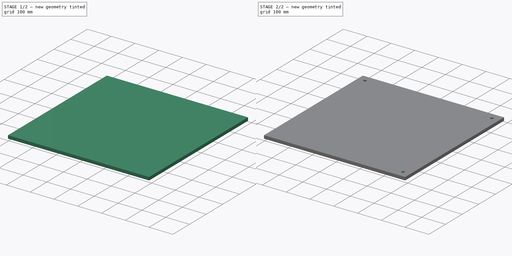
[diagram: build sequence overview — one tinted view per stage of 2, left to right]
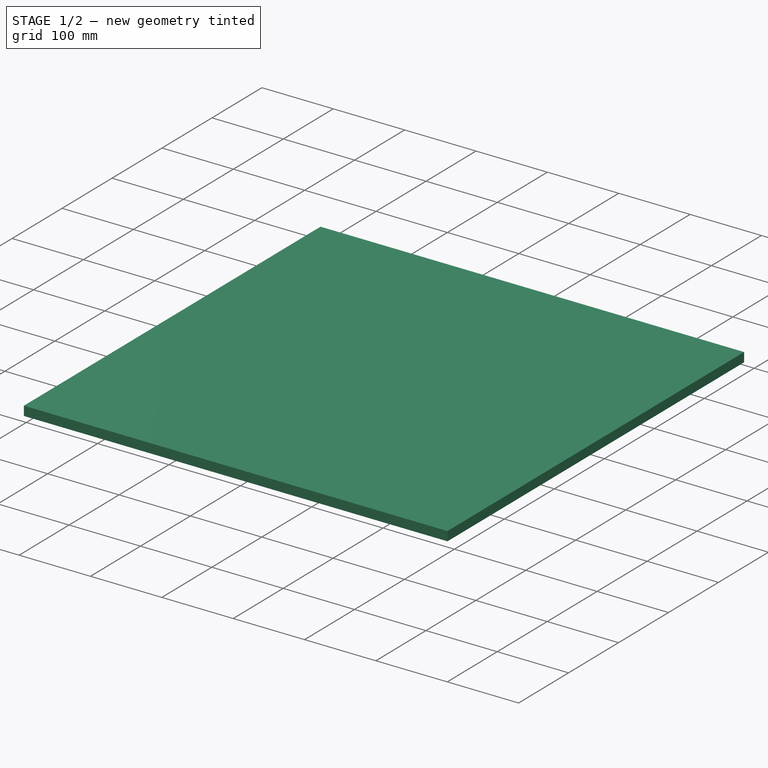
[diagram: stage 1 of 2 — iso view after this stage's code; geometry added in this stage tinted green]
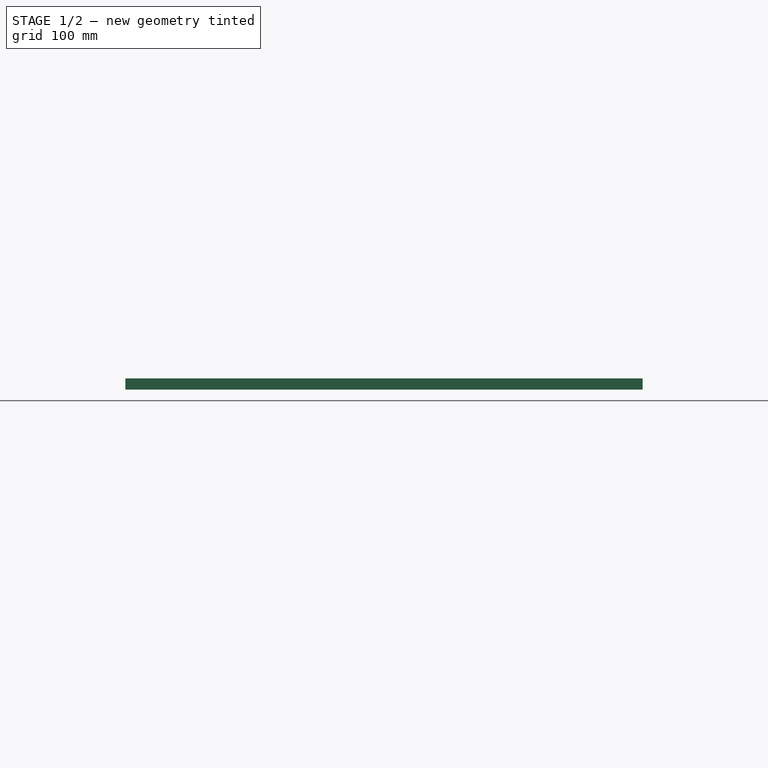
[diagram: stage 1 of 2 — front view after this stage's code; geometry added in this stage tinted green]
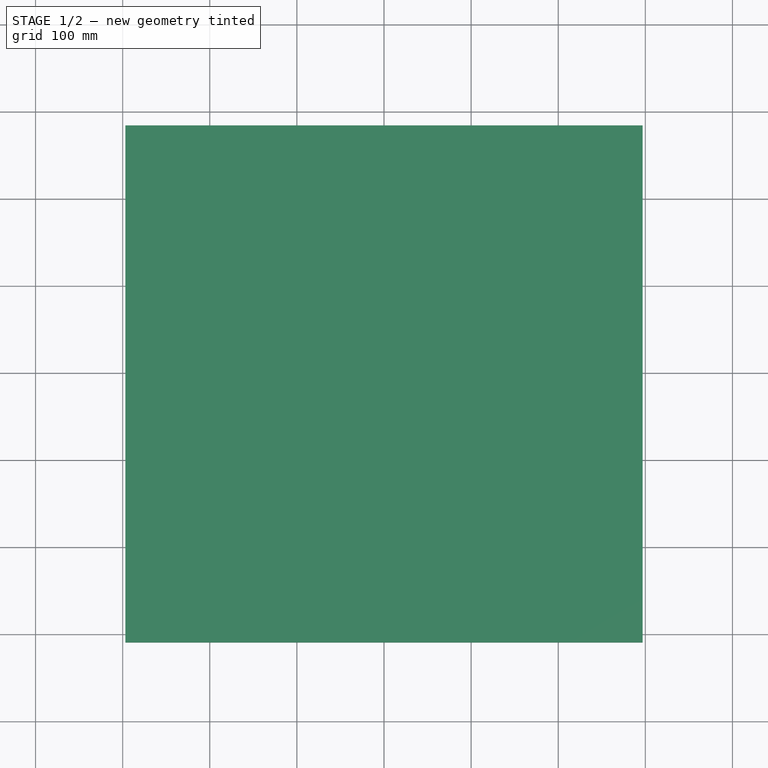
[diagram: stage 1 of 2 — top view after this stage's code; geometry added in this stage tinted green]
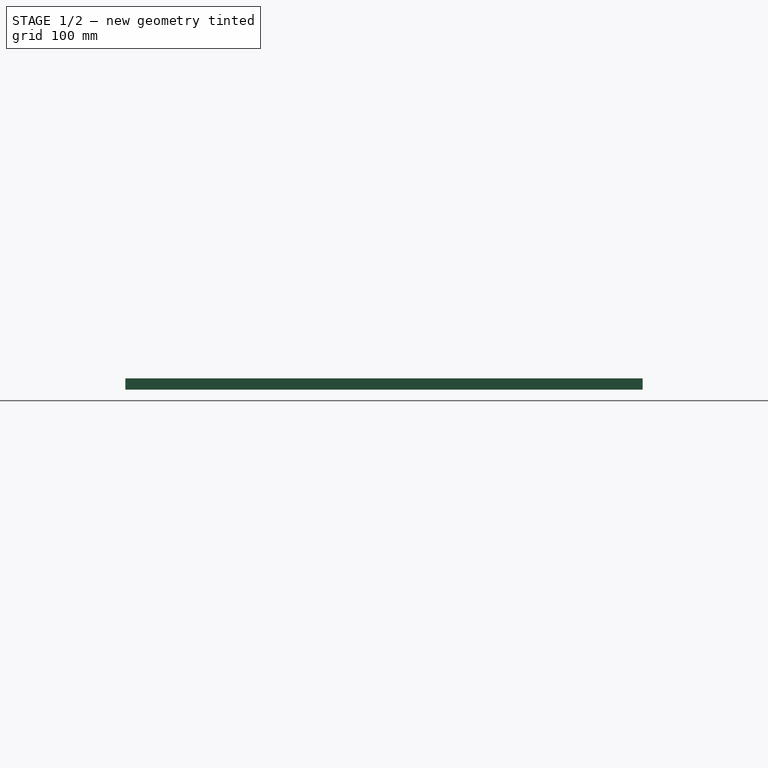
[diagram: stage 1 of 2 — right view after this stage's code; geometry added in this stage tinted green]
FCSTD DOCUMENT  (FreeCAD 0.20R29177 (Git))
Label: Stator_Mold_Base
License: All rights reserved
LicenseURL: http://en.wikipedia.org/wiki/All_rights_reserved
objects: App::Link×6, App::Part×3, Sketcher::SketchObject×2, PartDesign::Pad×1, PartDesign::Pocket×1, Spreadsheet::Sheet×1, PartDesign::Body×1
note: 7 computed .brp shape members not serialized (recipe doc carries the construction recipe); baked Part::Feature solids carry a one-line shape summary decoded from their .brp
EXTERNAL_REF file=../../../Master_of_Puppets.FCStd obj=Alternator
EXTERNAL_REF file=../../../Master_of_Puppets.FCStd obj=Fastener
EXTERNAL_REF file=../../../Master_of_Puppets.FCStd obj=Spreadsheet
EXTERNAL_REF file=../../../Fasteners/Fastener_Bolt_Locating.FCStd obj=Binder
EXTERNAL_REF file=../../../Fasteners/Fastener_Washer_StatorMold.FCStd obj=Tube

FEATURE [Sketcher::SketchObject] Sketch
  AttachmentOffset = pos=(0,-12.5,0) rot=(0,0,1;0rad)
  FullyConstrained = true
  MapMode = 5
  Placement = pos=(0,-12.5,0) rot=(0,0,1;0rad)
  Support = -> [XY_Plane001]
  expr: .AttachmentOffset.Base.y = Spreadsheet.SketchY
  expr: Constraints[15] = Spreadsheet.StatorMoldSideLength
  sketch-geometry (6):
    g0: LineSegment StartX=-296.825 StartY=296.825 StartZ=0 EndX=296.825 EndY=296.825 EndZ=0
    g1: LineSegment StartX=296.825 StartY=296.825 StartZ=0 EndX=296.825 EndY=-296.825 EndZ=0
    g2: LineSegment StartX=296.825 StartY=-296.825 StartZ=0 EndX=-296.825 EndY=-296.825 EndZ=0
    g3: LineSegment StartX=-296.825 StartY=-296.825 StartZ=0 EndX=-296.825 EndY=296.825 EndZ=0
    g4: LineSegment StartX=-296.825 StartY=296.825 StartZ=0 EndX=296.825 EndY=-296.825 EndZ=0
    g5: LineSegment StartX=296.825 StartY=296.825 StartZ=0 EndX=-296.825 EndY=-296.825 EndZ=0
  constraints (16):
    c: Coincident(g0,g1)
    c: Coincident(g1,g2)
    c: Coincident(g2,g3)
    c: Coincident(g3,g0)
    c: Horizontal(g0)
    c: Horizontal(g2)
    c: Vertical(g1)
    c: Vertical(g3)
    c: Coincident(g4,g0)
    c: Coincident(g4,g1)
    c: Coincident(g5,g0)
    c: Coincident(g5,g2)
    c: PointOnObject(g-1,g5)
    c: PointOnObject(g-1,g4)
    c: Equal(g0,g3)
    c: Distance(g0) = 593.65
FEATURE [PartDesign::Pad] Pad
  AllowMultiFace = false
  Direction = (0,0,1)
  Length = 13
  Length2 = 100
  Profile = -> Sketch
  Type = 0
  expr: Length = Spreadsheet.StatorThickness
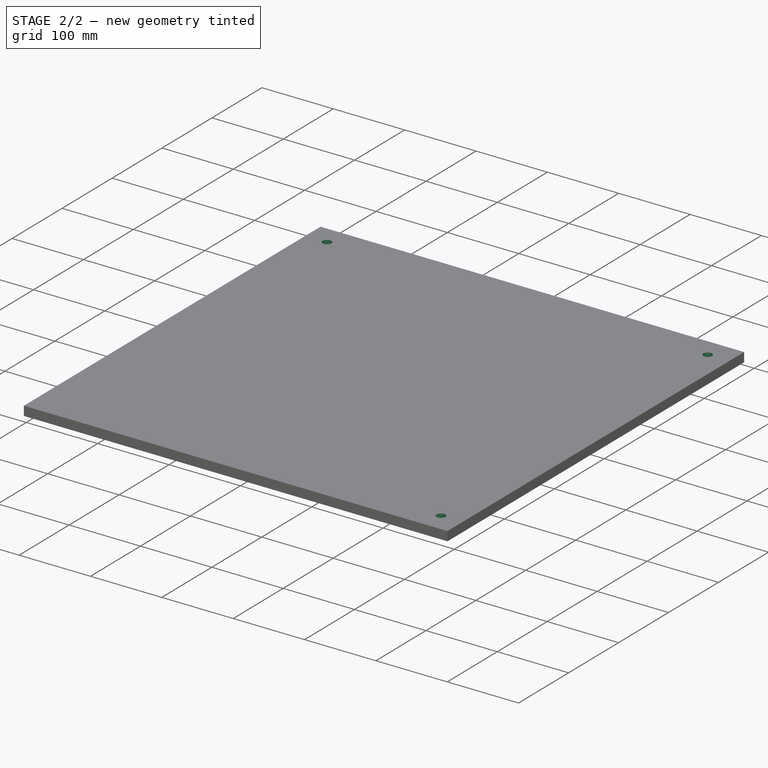
[diagram: stage 2 of 2 — iso view after this stage's code; geometry added in this stage tinted green]
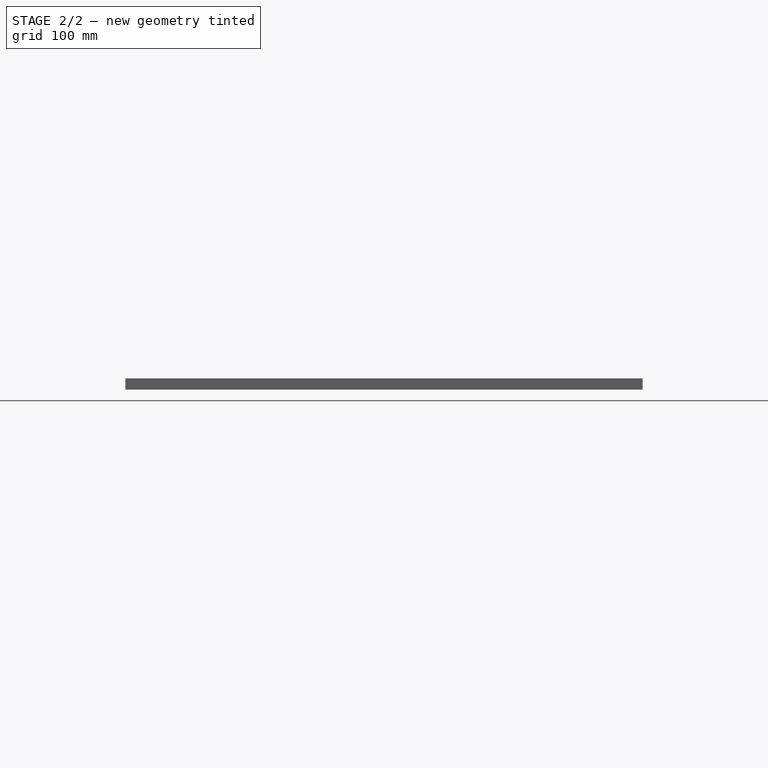
[diagram: stage 2 of 2 — front view after this stage's code; geometry added in this stage tinted green]
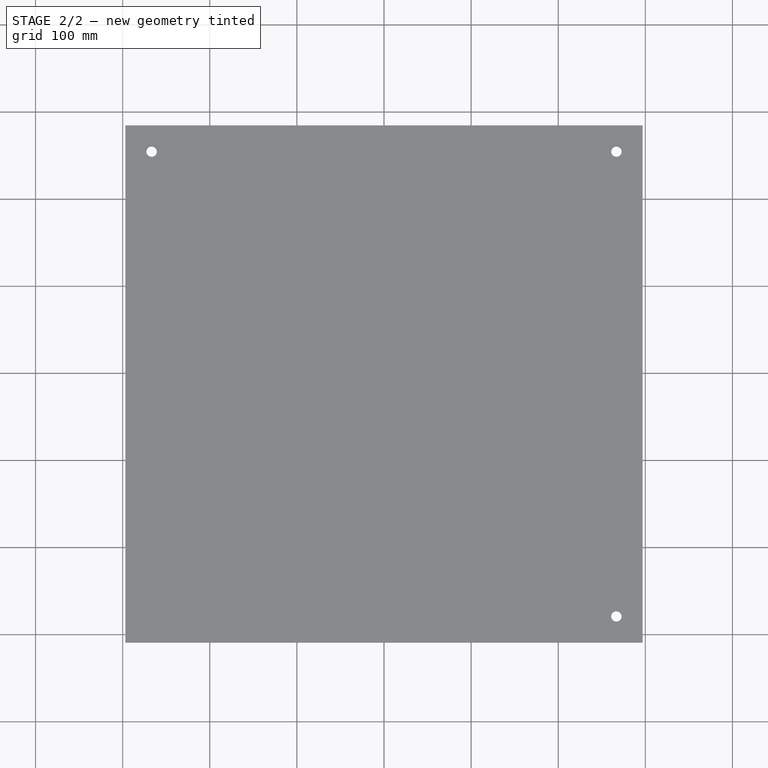
[diagram: stage 2 of 2 — top view after this stage's code; geometry added in this stage tinted green]
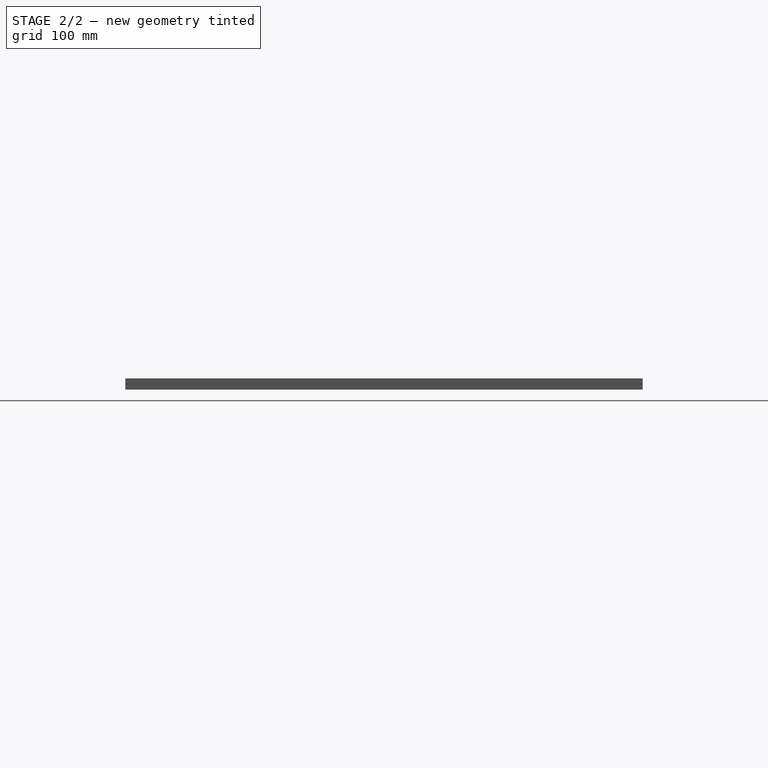
[diagram: stage 2 of 2 — right view after this stage's code; geometry added in this stage tinted green]
FEATURE [Sketcher::SketchObject] Sketch001
  AttachmentOffset = pos=(0,-12.5,0) rot=(0,0,1;0rad)
  FullyConstrained = true
  MapMode = 5
  Placement = pos=(0,-12.5,13) rot=(0,0,1;0rad)
  Support = -> [Pad]
  expr: .AttachmentOffset.Base.y = Spreadsheet.SketchY
  expr: Constraints[14] = Spreadsheet.StatorMoldBoltRadius
  expr: Constraints[5] = 45
  expr: Constraints[8] = Spreadsheet.DistanceOfLocatingHoleFromCenter
  sketch-geometry (6):
    g0: LineSegment StartX=-266.804 StartY=266.804 StartZ=0 EndX=0 EndY=0 EndZ=0
    g1: LineSegment StartX=0 StartY=0 StartZ=0 EndX=266.804 EndY=266.804 EndZ=0
    g2: LineSegment StartX=0 StartY=0 StartZ=0 EndX=266.804 EndY=-266.804 EndZ=0
    g3: Circle CenterX=-266.804 CenterY=266.804 CenterZ=0 NormalX=0 NormalY=0 NormalZ=1 AngleXU=0 Radius=6
    g4: Circle CenterX=266.804 CenterY=266.804 CenterZ=0 NormalX=0 NormalY=0 NormalZ=1 AngleXU=0 Radius=6
    g5: Circle CenterX=266.804 CenterY=-266.804 CenterZ=0 NormalX=0 NormalY=0 NormalZ=1 AngleXU=0 Radius=6
  constraints (15):
    c: Coincident(g0,g-1)
    c: Coincident(g0,g1)
    c: Coincident(g-1,g2)
    c: Parallel(g0,g2)
    c: Perpendicular(g2,g1)
    c: Angle(g-2,g0) = 0.785398
    c: Equal(g0,g1)
    c: Equal(g1,g2)
    c: Distance(g0) = 377.318
    c: Coincident(g3,g0)
    c: Coincident(g5,g2)
    c: Coincident(g4,g1)
    c: Equal(g3,g4)
    c: Equal(g4,g5)
    c: Radius(g3) = 6
FEATURE [PartDesign::Pocket] Pocket
  AllowMultiFace = false
  BaseFeature = -> Pad
  Direction = (0,0,-1)
  Length = 5
  Length2 = 100
  Profile = -> Sketch001
  Type = 1
FEATURE [Spreadsheet::Sheet] Spreadsheet
  cells = A1=Inputs; A2=Spreadsheet; A3=StatorThickness; B3(StatorThickness)==Master_of_Puppets#Spreadsheet.StatorThickness; A4=StatorMoldBoltDiameter; B4(StatorMoldBoltDiameter)==Master_of_Puppets#Alternator.StatorMoldBoltDiameter; A5=RotorDiskRadius; B5(RotorDiskRadius)==Master_of_Puppets#Spreadsheet.RotorDiskRadius; A6=Alternator; A7=StatorHolesCircumradius; B7(StatorHolesCircumradius)==Master_of_Puppets#Alternator.StatorHolesCircumradius; A8=EarSize; B8(EarSize)==Master_of_Puppets#Alternator.EarSize; A9=SketchY; B9(SketchY)==Master_of_Puppets#Alternator.SketchY; A10=StatorMoldSideLength; B10(StatorMoldSideLength)==Master_of_Puppets#Alternator.StatorMoldSideLength; A11=DistanceOfLocatingHoleFromCenter; B11(DistanceOfLocatingHoleFromCenter)==Master_of_Puppets#Alternator.DistanceOfLocatingHoleFromCenter; A12=LocatingBolt1X; B12(LocatingBolt1X)==Master_of_Puppets#Alternator.LocatingBolt1X; A13=LocatingBolt1Y; B13(LocatingBolt1Y)==Master_of_Puppets#Alternator.LocatingBolt1Y; A14=LocatingBolt2X; B14(LocatingBolt2X)==Master_of_Puppets#Alternator.LocatingBolt2X; A15=LocatingBolt2Y; B15(LocatingBolt2Y)==Master_of_Puppets#Alternator.LocatingBolt2Y; A16=LocatingBolt3X; B16(LocatingBolt3X)==Master_of_Puppets#Alternator.LocatingBolt3X; A17=LocatingBolt3Y; B17(LocatingBolt3Y)==Master_of_Puppets#Alternator.LocatingBolt3Y; A18=Fastener; A19=WasherThickness; B19(WasherThickness)==Master_of_Puppets#Fastener.WasherThickness; A20=Calculated; A21=StatorMoldBoltRadius; B21(StatorMoldBoltRadius)==StatorMoldBoltDiameter / 2; A22=BoltZ; B22(BoltZ)==-WasherThickness; A23=NutZ; B23(NutZ)==StatorThickness * 5; A24=WasherZ; B24(WasherZ)==-WasherThickness
FEATURE [PartDesign::Body] PocketBody  label="Stator_Mold_Base"
  Group = -> [Sketch,Pad,Sketch001,Pocket]
  Openafpm_Flat = true
  Origin = -> Origin001
  Tip = -> Pocket
FEATURE [App::Link] Link001  label="Fastener_Bolt2"
  LinkPlacement = pos=(266.804,254.304,-2.5) rot=(0,0,1;0rad)
  LinkedObject = -> Link
  Placement = pos=(266.804,254.304,-2.5) rot=(0,0,1;0rad)
  expr: .Placement.Base.x = Spreadsheet.LocatingBolt2X
  expr: .Placement.Base.y = Spreadsheet.LocatingBolt2Y
  expr: .Placement.Base.z = Spreadsheet.BoltZ
FEATURE [App::Link] Link002  label="Fastener_Bolt3"
  LinkPlacement = pos=(266.804,-279.304,-2.5) rot=(0,0,1;0rad)
  LinkedObject = -> Link001
  Placement = pos=(266.804,-279.304,-2.5) rot=(0,0,1;0rad)
  expr: .Placement.Base.x = Spreadsheet.LocatingBolt3X
  expr: .Placement.Base.y = Spreadsheet.LocatingBolt3Y
  expr: .Placement.Base.z = Spreadsheet.BoltZ
FEATURE [App::Link] Link  label="Fastener_Bolt1"
  LinkPlacement = pos=(-266.804,254.304,-2.5) rot=(0,0,1;0rad)
  LinkedObject = -> <external ../../../Fasteners/Fastener_Bolt_Locating.FCStd>#Binder
  Placement = pos=(-266.804,254.304,-2.5) rot=(0,0,1;0rad)
  Scale = -1
  ScaleVector = (-1,-1,-1)
  expr: .Placement.Base.x = Spreadsheet.LocatingBolt1X
  expr: .Placement.Base.y = Spreadsheet.LocatingBolt1Y
  expr: .Placement.Base.z = Spreadsheet.BoltZ
FEATURE [App::Part] Part  label="LocatingBolts"
  Group = -> [Link,Link001,Link002]
  Origin = -> Origin
FEATURE [App::Link] Link003  label="Washer1"
  LinkPlacement = pos=(-266.804,254.304,-2.5) rot=(0,0,1;0rad)
  LinkedObject = -> <external ../../../Fasteners/Fastener_Washer_StatorMold.FCStd>#Tube
  Placement = pos=(-266.804,254.304,-2.5) rot=(0,0,1;0rad)
  expr: .Placement.Base.x = Spreadsheet.LocatingBolt1X
  expr: .Placement.Base.y = Spreadsheet.LocatingBolt1Y
  expr: .Placement.Base.z = Spreadsheet.WasherZ
FEATURE [App::Link] Link004  label="Washer2"
  LinkPlacement = pos=(266.804,254.304,-2.5) rot=(0,0,1;0rad)
  LinkedObject = -> Link003
  Placement = pos=(266.804,254.304,-2.5) rot=(0,0,1;0rad)
  expr: .Placement.Base.x = Spreadsheet.LocatingBolt2X
  expr: .Placement.Base.y = Spreadsheet.LocatingBolt2Y
  expr: .Placement.Base.z = Spreadsheet.WasherZ
FEATURE [App::Link] Link005  label="Washer3"
  LinkPlacement = pos=(266.804,-279.304,-2.5) rot=(0,0,1;0rad)
  LinkedObject = -> Link004
  Placement = pos=(266.804,-279.304,-2.5) rot=(0,0,1;0rad)
  expr: .Placement.Base.x = Spreadsheet.LocatingBolt3X
  expr: .Placement.Base.y = Spreadsheet.LocatingBolt3Y
  expr: .Placement.Base.z = Spreadsheet.WasherZ
FEATURE [App::Part] Part002  label="LocatingWashers"
  Group = -> [Link003,Link004,Link005]
  Origin = -> Origin003
FEATURE [App::Part] Part001  label="Stator_Mold_Base_Assembly"
  Group = -> [PocketBody,Part,Part002]
  Origin = -> Origin002

RESOLVED EXTERNAL PARTS (link-assembly join: the EXTERNAL_REF files above that resolve inside this repo's crawl, each included once):
---- part ../../../Fasteners/Fastener_Bolt_Locating.FCStd = doc fcstd_0f2daa9d92df ----
FCSTD DOCUMENT  (FreeCAD 0.20R29177 (Git))
Label: Fastener_Bolt_Locating
License: All rights reserved
LicenseURL: http://en.wikipedia.org/wiki/All_rights_reserved
objects: PartDesign::SubShapeBinder×1
note: 1 computed .brp shape members not serialized (recipe doc carries the construction recipe); baked Part::Feature solids carry a one-line shape summary decoded from their .brp
EXTERNAL_REF file=Fastener_Bolt_Tail_Vane.FCStd obj=Body

FEATURE [PartDesign::SubShapeBinder] Binder  label="Fastener_Bolt"
  BindCopyOnChange = 2
  BindMode = 0
  ClaimChildren = false
  Fuse = false
  MakeFace = true
  OffsetFill = false
  OffsetIntersection = false
  OffsetJoinType = 0
  OffsetOpenResult = false
  PartialLoad = false
  Relative = true
  Support = -> [<external Fastener_Bolt_Tail_Vane.FCStd>#Body]
  Variant = 3
  _Version = 2
---- part ../../../Master_of_Puppets.FCStd = doc fcstd_6404554055c4 (61625 chars; too large to inline — full recipe in that document) ----
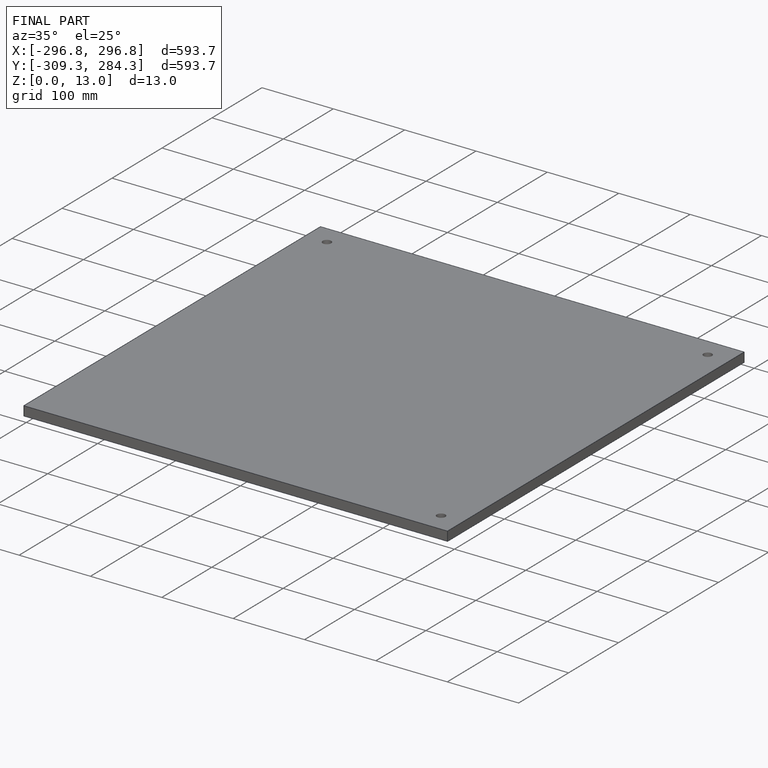
[diagram: finished part — iso view with bounding-box wireframe]
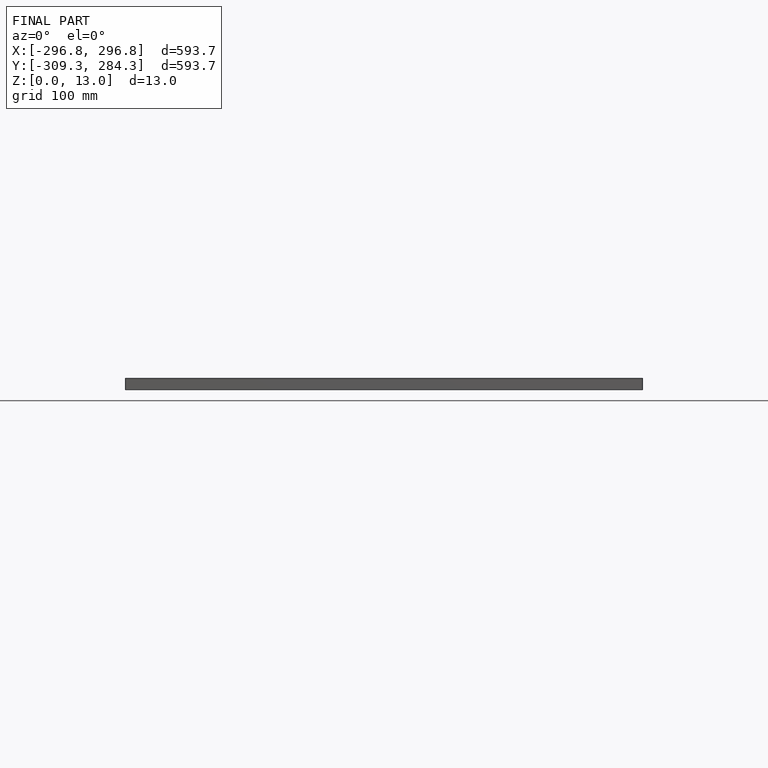
[diagram: finished part — front view with bounding-box wireframe]
